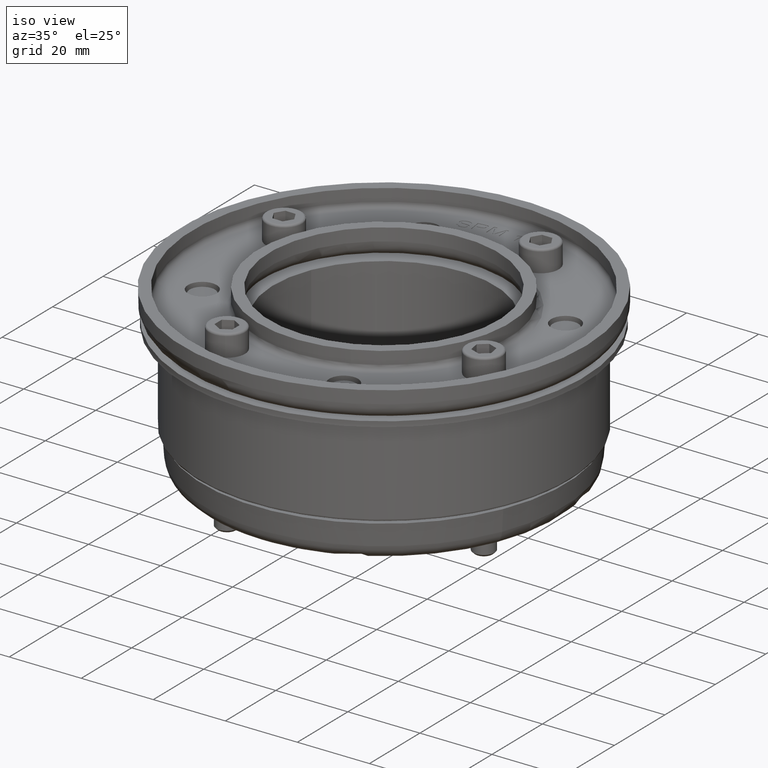
[diagram: clean part render]
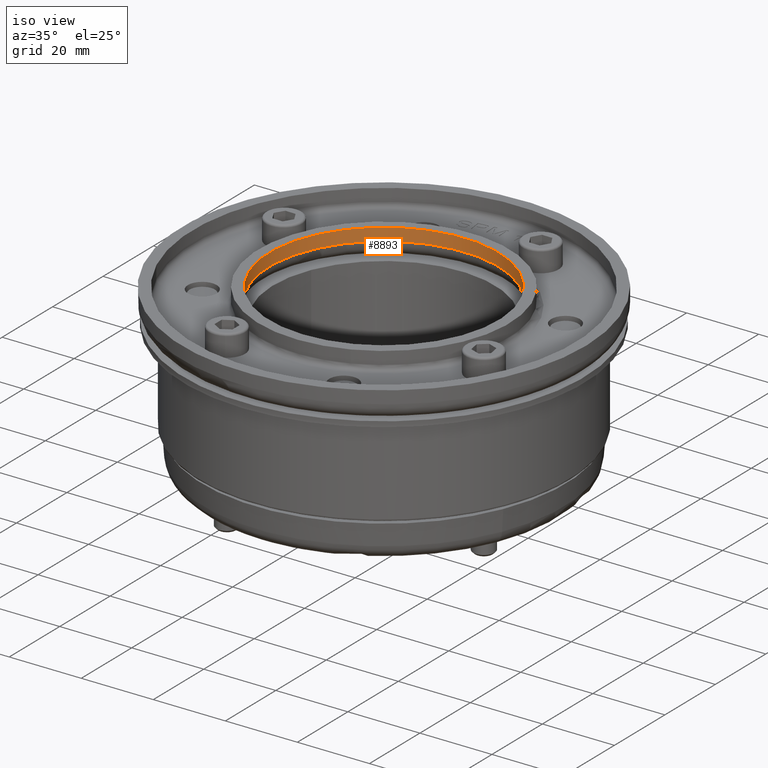
[diagram: same view with one face highlighted and labeled with its STEP entity id]
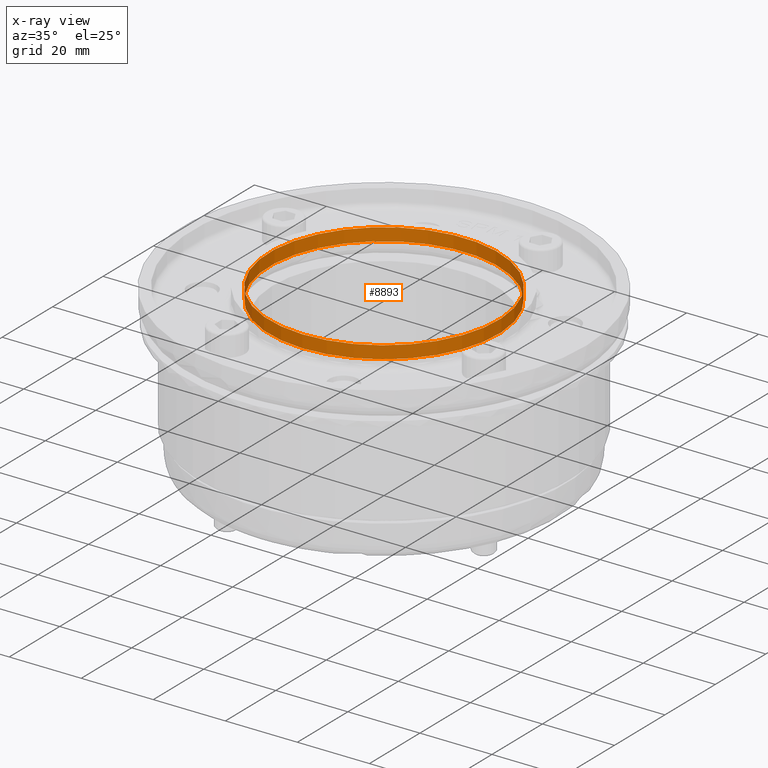
[diagram: x-ray of the same camera — body ghosted, the highlighted face saturated]
A machine part, iso view. The second image highlights one B-rep face of the part: STEP entity #8893.
The next image is the same camera in x-ray: the body ghosted, the highlighted face saturated — about 0% of this face is hidden behind the body in this view.
In plain terms, the highlighted cylindrical surface (bore or boss wall) has radius 31.8 mm, axis along (-0, 0, 1).
Its self-contained STEP definition (entity closure, byte-faithful):
#8859=CARTESIAN_POINT('',(-31.799999999999997,-0.499999999999993,0.0));
#8860=VERTEX_POINT('',#8859);
#8861=CARTESIAN_POINT('',(0.0,-0.499999999999993,0.0));
#8862=DIRECTION('',(0.0,1.0,0.0));
#8863=DIRECTION('',(1.0,0.0,0.0));
#8864=AXIS2_PLACEMENT_3D('',#8861,#8862,#8863);
#8865=CIRCLE('',#8864,31.799999999999997);
#8866=EDGE_CURVE('',#8860,#8860,#8865,.T.);
#8874=CARTESIAN_POINT('',(0.0,-3.74999999999999,0.0));
#8875=DIRECTION('',(0.0,1.0,0.0));
#8876=DIRECTION('',(-1.0,0.0,0.0));
#8877=AXIS2_PLACEMENT_3D('',#8874,#8875,#8876);
#8878=CYLINDRICAL_SURFACE('',#8877,31.799999999999997);
#8879=CARTESIAN_POINT('',(-31.799999999999997,3.000000000000011,0.0));
#8880=VERTEX_POINT('',#8879);
#8881=CARTESIAN_POINT('',(0.0,3.000000000000011,0.0));
#8882=DIRECTION('',(0.0,1.0,0.0));
#8883=DIRECTION('',(-1.0,0.0,0.0));
#8884=AXIS2_PLACEMENT_3D('',#8881,#8882,#8883);
#8885=CIRCLE('',#8884,31.799999999999997);
#8886=EDGE_CURVE('',#8880,#8880,#8885,.T.);
#8887=ORIENTED_EDGE('',*,*,#8886,.T.);
#8888=EDGE_LOOP('',(#8887));
#8889=FACE_OUTER_BOUND('',#8888,.T.);
#8890=ORIENTED_EDGE('',*,*,#8866,.F.);
#8891=EDGE_LOOP('',(#8890));
#8892=FACE_BOUND('',#8891,.T.);
#8893=ADVANCED_FACE('',(#8889,#8892),#8878,.F.);